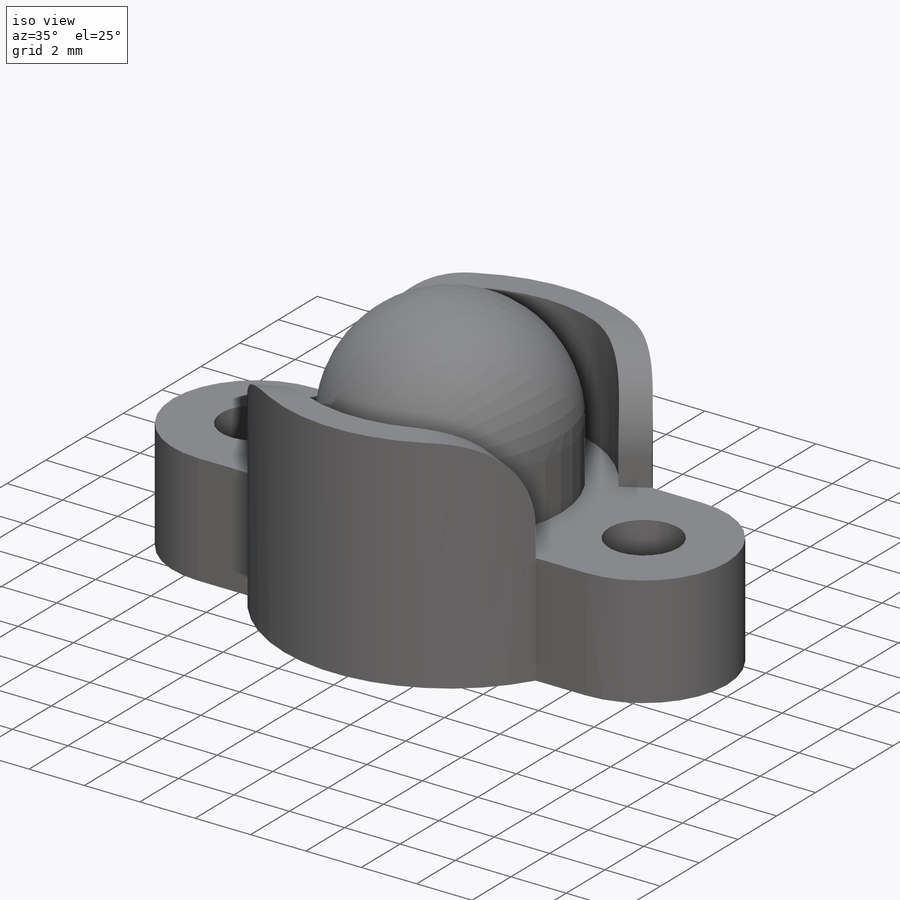
[diagram: iso view]
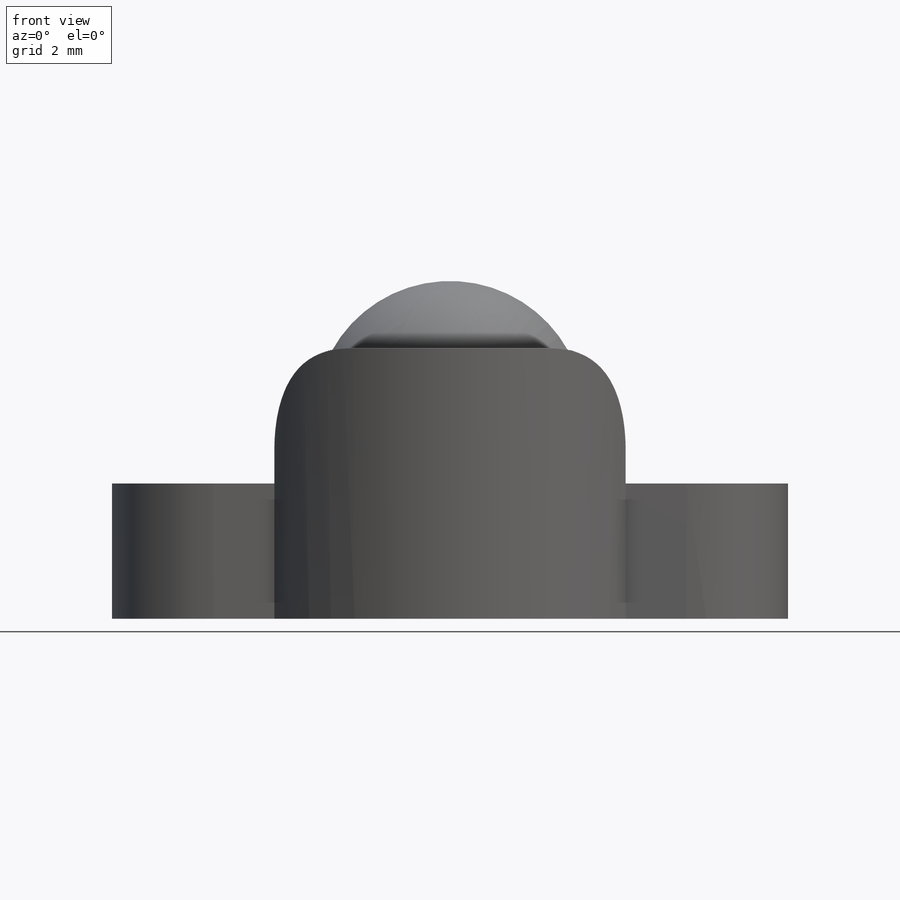
[diagram: front view]
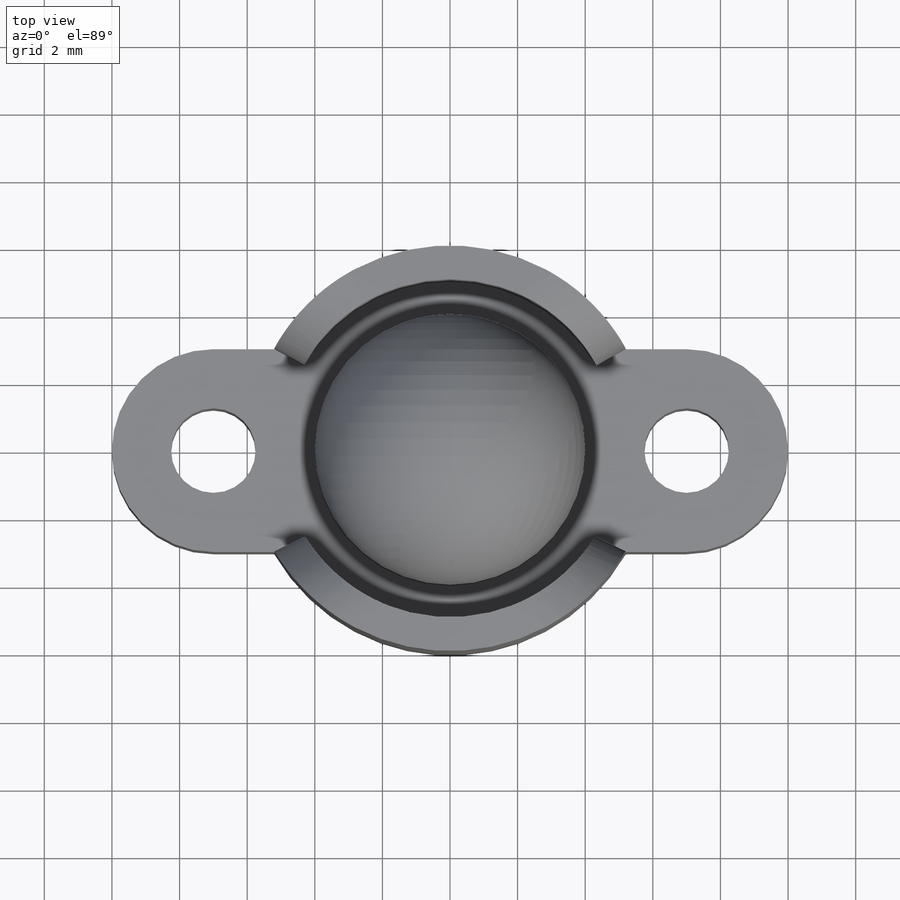
[diagram: top view]
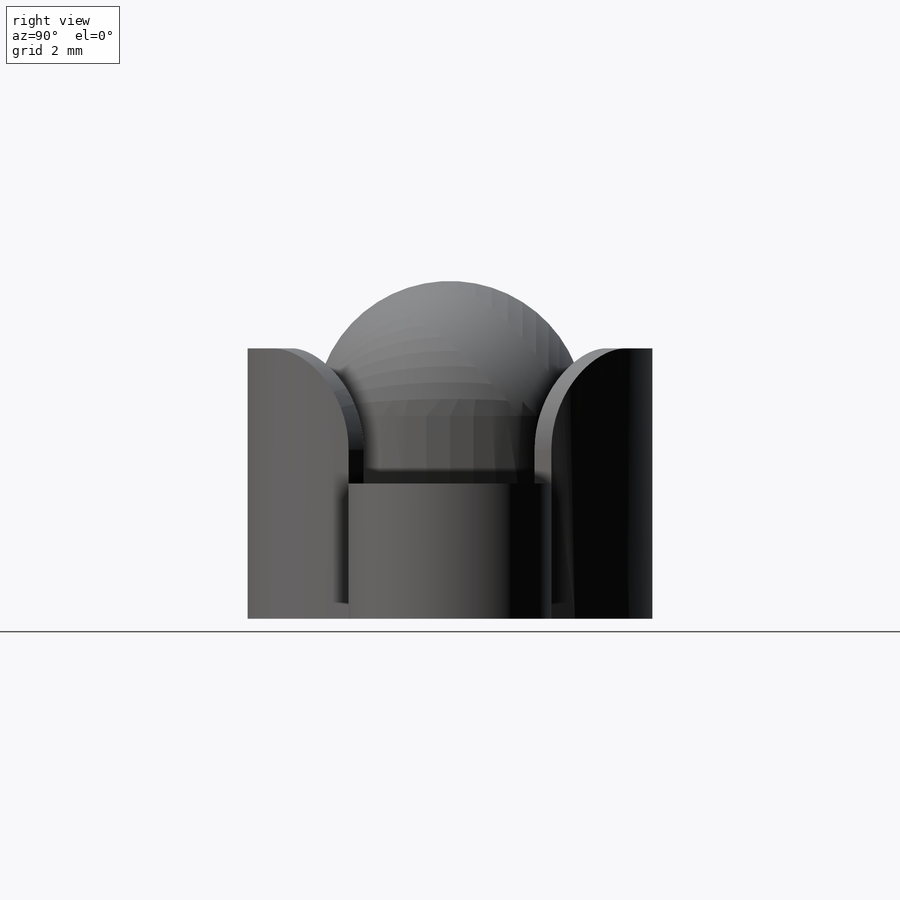
[diagram: right view]
SOLIDWORKS PART (.sldprt)
format: sldprt  version: not decoded by parser v0  size: 288,768 bytes
history: native  units: mm
features: fillet x5, plane x3, sketch x3, extrude x3, material x1 (+9 scaffold rows collapsed)
feature tree (24):
  scaffold x9  (default folders/planes/origin — collapsed)
  material  "Matériau <non spécifié>"
  plane  "Plan de face"
  plane  "Plan de dessus"
  plane  "Plan de droite"
  sketch  "Esquisse1"  dims[c1.D1=6.0mm c1.D2=6.0mm c1.D3=6.0mm c1.D7=~4.161109mm c1.D15=2.5mm c1.D16=2.5mm c2.D3=3.0mm c2.D4=3.0mm c3.D3=3.0mm c3.D4=3.0mm c3.D5=3.0mm c3.D6=3.0mm c3.D7=0.0mm c3.D8=0.0mm c3.D9=5.0mm c3.D10=5.0mm c3.D11=6.0mm c4.D3=6.0mm c4.D4=~3.085651mm c5.D4=0.0deg c5.D5=3.0mm c6.D5=0.0deg c6.D6=3.0mm c6.D12=3.0mm c6.D3=~6.367922mm c7.D3=90.0deg c7.D4=~6.01923mm c8.D4=90.0deg c8.D5=~2.168111mm c9.D5=90.0deg c9.D7=~0.88159mm c10.D7=360.0deg c10.D8=~23.096791mm c10.D6=10.0mm c11.D7=10.0mm c11.D8=6.0mm c11.D9=3.0mm c11.D10=3.0mm c11.D12=5.0mm c11.D13=~5.196152mm c12.D12=5.0mm c13.D12=90.0deg c13.D13=5.0mm c13.D14=5.0mm c14.D13=10.0mm c14.D14=10.0mm c14.D17=3.0mm c14.D18=3.0mm c14.D19=3.0mm c14.D20=3.0mm c15.D19=7.0mm c15.D20=7.0mm c15.D21=6.0mm c15.D4=6.0mm c15.D3=~1.803848mm c15.D5=3.0mm c15.D6=3.0mm c15.D7=7.0mm c16.D3=90.0deg]
  extrude  "Boss.-Extru.1"  Depth=4mm
  sketch  "Esquisse2"  dims[c1.D1=5.0mm c1.D2=5.0mm c2.D1=~2.122574mm c2.D3=~1.003171mm c2.D4=~1.002624mm c2.D5=1.0mm c2.D6=~1.000338mm c2.D7=~1.002624mm]
  extrude  "Boss.-Extru.2"  Depth=4mm
  fillet  "Congé4"  Radius=3mm
  fillet  "Congé5"  Radius=3mm
  fillet  "Congé6"  Radius=3mm
  fillet  "Congé7"  Radius=3mm
  sketch  "Esquisse3"  dims[D1=8.0mm]
  extrude  "Boss.-Extru.3"  Depth=6mm
  fillet  "Congé8"  Radius=4mm
decode coverage: 11 of 11 modeling features carry decoded parameters
note: ~ marks probable driven/reference dimensions
note: suppression state not decoded; provenance and decode notes live in map.json
